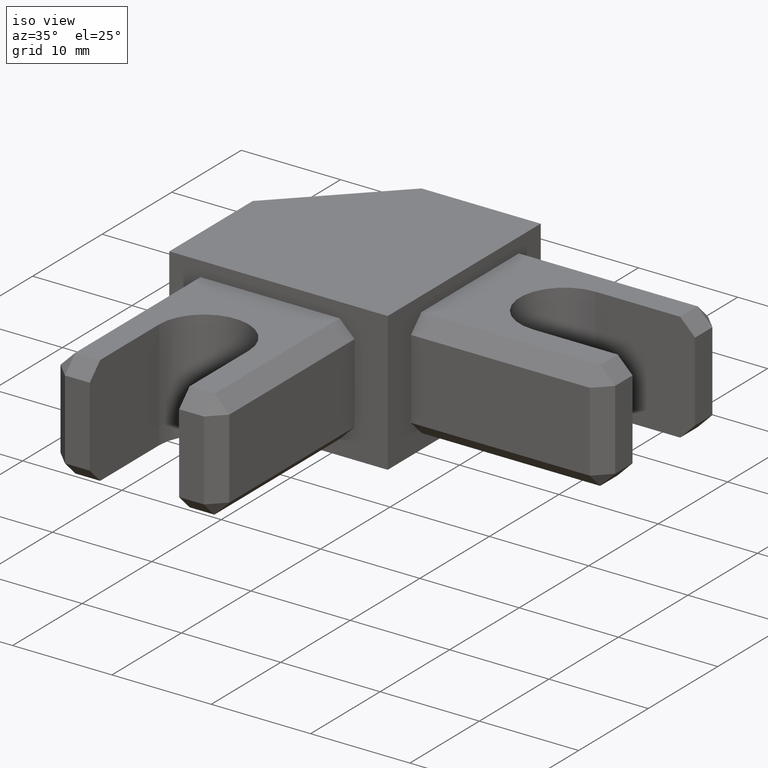
[diagram: clean part render]
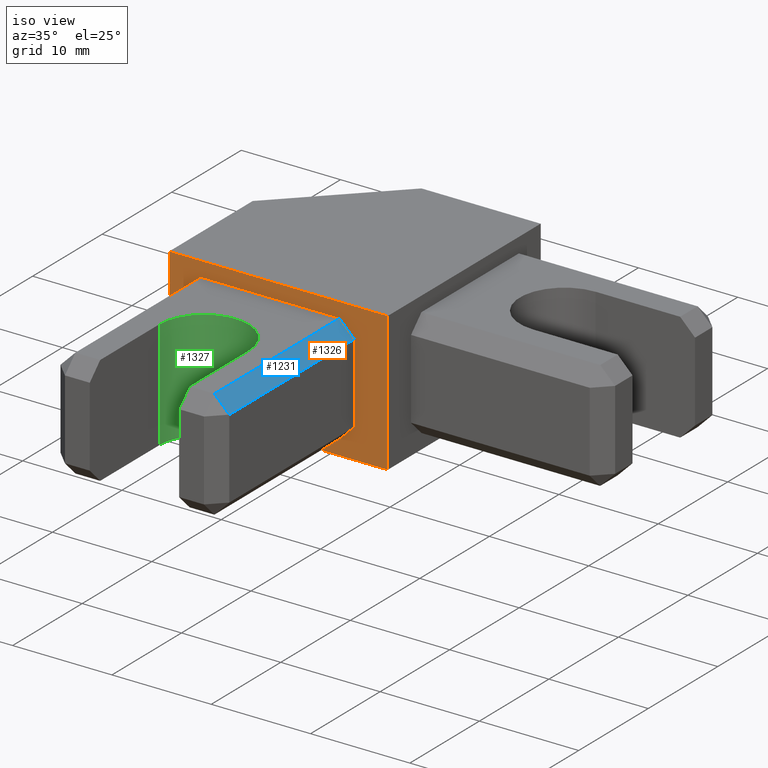
[diagram: same view with three faces highlighted in distinct colors, each labeled with its STEP entity id]
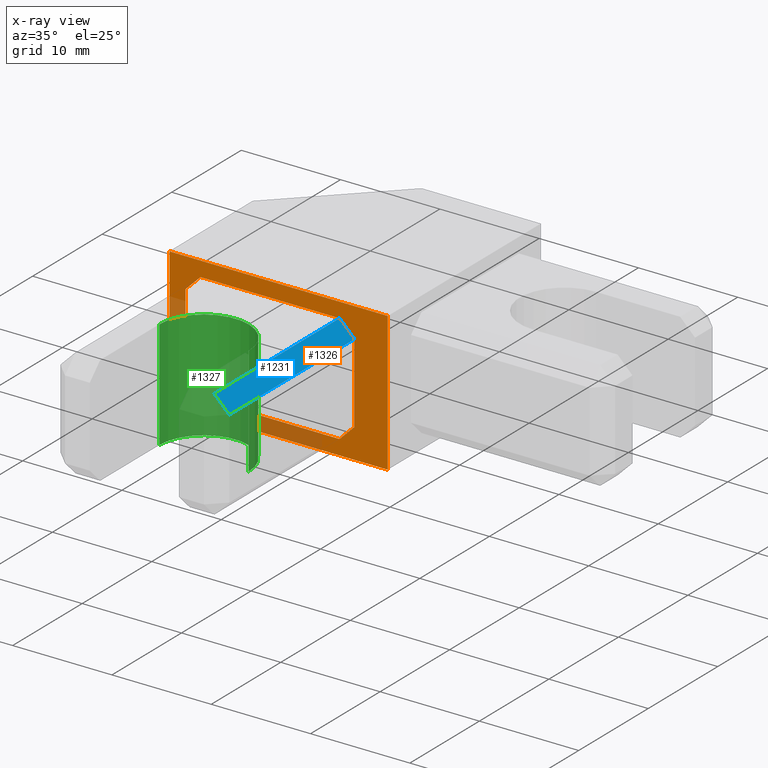
[diagram: x-ray of the same camera — body ghosted, the three highlighted faces saturated]
A machine part, iso view with three faces highlighted in distinct colors.
The next image is the same camera in x-ray (body ghosted, the three faces saturated) — at least one of them is partly hidden behind the body in this view.
Their STEP definitions:

[orange] entity #1326 — the highlighted planar face has unit normal (0, -1, 0).
#223 = FACE_OUTER_BOUND ( 'NONE', #948, .T. ) ;
#233 = FACE_BOUND ( 'NONE', #922, .T. ) ;
#238 = CARTESIAN_POINT ( 'NONE',  ( 484.7837601056899600, 394.2450700072844300, 27.55501611203465000 ) ) ;
#241 = DIRECTION ( 'NONE',  ( 2.234113567545890500E-015, -1.000000000000000000, 0.0000000000000000000 ) ) ;
#247 = DIRECTION ( 'NONE',  ( 1.000000000000000000, 2.234113567545890500E-015, 0.0000000000000000000 ) ) ;
#248 = PLANE ( 'NONE',  #1488 ) ;
#401 = CARTESIAN_POINT ( 'NONE',  ( 484.7937601056900100, 394.2450700072844800, 16.70501611203464900 ) ) ;
#431 = LINE ( 'NONE', #432, #1409 ) ;
#432 = CARTESIAN_POINT ( 'NONE',  ( 484.7937601056900100, 394.2450700072844800, 30.70501611203465200 ) ) ;
#434 = DIRECTION ( 'NONE',  ( 0.0000000000000000000, 0.0000000000000000000, -1.000000000000000000 ) ) ;
#440 = LINE ( 'NONE', #484, #1429 ) ;
#462 = LINE ( 'NONE', #467, #1442 ) ;
#464 = DIRECTION ( 'NONE',  ( -0.7071067811865455700, 0.0000000000000000000, -0.7071067811865495700 ) ) ;
#467 = CARTESIAN_POINT ( 'NONE',  ( 484.7937601056900100, 394.2450700072844800, 16.70501611203464900 ) ) ;
#470 = DIRECTION ( 'NONE',  ( 1.000000000000000000, 0.0000000000000000000, 0.0000000000000000000 ) ) ;
#471 = CARTESIAN_POINT ( 'NONE',  ( 482.4743233109049900, 394.2450700072844800, 18.20501611203464900 ) ) ;
#474 = DIRECTION ( 'NONE',  ( 0.0000000000000000000, 0.0000000000000000000, -1.000000000000000000 ) ) ;
#475 = LINE ( 'NONE', #476, #1449 ) ;
#476 = CARTESIAN_POINT ( 'NONE',  ( 499.5437601056900100, 394.2450700072844800, 15.80501611203470000 ) ) ;
#478 = LINE ( 'NONE', #471, #1456 ) ;
#484 = CARTESIAN_POINT ( 'NONE',  ( 506.7937601056900100, 394.2450700072844800, 30.70501611203465200 ) ) ;
#487 = CARTESIAN_POINT ( 'NONE',  ( 484.7937601056900100, 394.2450700072844800, 29.20501611203465200 ) ) ;
#488 = DIRECTION ( 'NONE',  ( 1.000000000000000000, 0.0000000000000000000, 7.255947251187369900E-017 ) ) ;
#490 = LINE ( 'NONE', #487, #1430 ) ;
#494 = DIRECTION ( 'NONE',  ( -1.000000000000000000, 0.0000000000000000000, -6.266940531214389000E-017 ) ) ;
#507 = LINE ( 'NONE', #515, #1421 ) ;
#515 = CARTESIAN_POINT ( 'NONE',  ( 486.4437601056899900, 394.2450700072844800, 23.55501611203467500 ) ) ;
#518 = CARTESIAN_POINT ( 'NONE',  ( 487.1937601056899900, 394.2450700072844800, 28.45501611203470200 ) ) ;
#519 = DIRECTION ( 'NONE',  ( 0.7071067811865460200, 0.0000000000000000000, -0.7071067811865489100 ) ) ;
#520 = LINE ( 'NONE', #530, #1448 ) ;
#521 = LINE ( 'NONE', #529, #1440 ) ;
#522 = DIRECTION ( 'NONE',  ( 0.7071067811865441300, 0.0000000000000000000, 0.7071067811865510100 ) ) ;
#523 = DIRECTION ( 'NONE',  ( -0.0000000000000000000, -0.0000000000000000000, 1.000000000000000000 ) ) ;
#524 = LINE ( 'NONE', #539, #1453 ) ;
#525 = DIRECTION ( 'NONE',  ( -0.7071067811865441300, 0.0000000000000000000, 0.7071067811865510100 ) ) ;
#529 = CARTESIAN_POINT ( 'NONE',  ( 492.5437601056900100, 394.2450700072844800, 38.60501611203469700 ) ) ;
#530 = CARTESIAN_POINT ( 'NONE',  ( 503.4437601056900500, 394.2450700072844800, 23.55501611203467500 ) ) ;
#535 = LINE ( 'NONE', #518, #1451 ) ;
#539 = CARTESIAN_POINT ( 'NONE',  ( 480.1937601056900500, 394.2450700072844800, 25.95501611203475200 ) ) ;
#540 = DIRECTION ( 'NONE',  ( -0.0000000000000000000, -0.0000000000000000000, 1.000000000000000000 ) ) ;
#546 = CARTESIAN_POINT ( 'NONE',  ( 503.4437601056900500, 394.2450700072844800, 30.70501611203465200 ) ) ;
#547 = LINE ( 'NONE', #546, #1443 ) ;
#568 = DIRECTION ( 'NONE',  ( 1.000000000000000000, 0.0000000000000000000, 0.0000000000000000000 ) ) ;
#596 = VERTEX_POINT ( 'NONE', #1174 ) ;
#603 = VERTEX_POINT ( 'NONE', #1182 ) ;
#604 = VERTEX_POINT ( 'NONE', #1197 ) ;
#605 = VERTEX_POINT ( 'NONE', #1201 ) ;
#606 = VERTEX_POINT ( 'NONE', #1175 ) ;
#607 = VERTEX_POINT ( 'NONE', #1185 ) ;
#608 = VERTEX_POINT ( 'NONE', #1167 ) ;
#611 = VERTEX_POINT ( 'NONE', #1189 ) ;
#621 = VERTEX_POINT ( 'NONE', #1149 ) ;
#623 = VERTEX_POINT ( 'NONE', #1152 ) ;
#633 = VERTEX_POINT ( 'NONE', #1209 ) ;
#637 = ORIENTED_EDGE ( 'NONE', *, *, #1253, .T. ) ;
#640 = ORIENTED_EDGE ( 'NONE', *, *, #1241, .T. ) ;
#641 = ORIENTED_EDGE ( 'NONE', *, *, #1255, .T. ) ;
#645 = ORIENTED_EDGE ( 'NONE', *, *, #1251, .T. ) ;
#649 = ORIENTED_EDGE ( 'NONE', *, *, #1258, .F. ) ;
#651 = ORIENTED_EDGE ( 'NONE', *, *, #1245, .T. ) ;
#652 = ORIENTED_EDGE ( 'NONE', *, *, #1235, .T. ) ;
#657 = ORIENTED_EDGE ( 'NONE', *, *, #1242, .T. ) ;
#688 = ORIENTED_EDGE ( 'NONE', *, *, #1243, .T. ) ;
#692 = ORIENTED_EDGE ( 'NONE', *, *, #1237, .F. ) ;
#693 = ORIENTED_EDGE ( 'NONE', *, *, #1254, .T. ) ;
#699 = ORIENTED_EDGE ( 'NONE', *, *, #1257, .F. ) ;
#922 = EDGE_LOOP ( 'NONE', ( #699, #688, #651, #641, #637, #693, #640, #645 ) ) ;
#948 = EDGE_LOOP ( 'NONE', ( #657, #692, #649, #652 ) ) ;
#978 = VERTEX_POINT ( 'NONE', #401 ) ;
#1149 = CARTESIAN_POINT ( 'NONE',  ( 487.9437601056899900, 394.2450700072844800, 29.20501611203465200 ) ) ;
#1152 = CARTESIAN_POINT ( 'NONE',  ( 487.9437601056899900, 394.2450700072844300, 18.20501611203467700 ) ) ;
#1167 = CARTESIAN_POINT ( 'NONE',  ( 486.4437601056899900, 394.2450700072844300, 19.70501611203464200 ) ) ;
#1174 = CARTESIAN_POINT ( 'NONE',  ( 503.4437601056900500, 394.2450700072844800, 19.70501611203469800 ) ) ;
#1175 = CARTESIAN_POINT ( 'NONE',  ( 501.9437601056899900, 394.2450700072844800, 18.20501611203464900 ) ) ;
#1182 = CARTESIAN_POINT ( 'NONE',  ( 486.4437601056899900, 394.2450700072844800, 27.70501611203465200 ) ) ;
#1185 = CARTESIAN_POINT ( 'NONE',  ( 506.7937601056900100, 394.2450700072844800, 16.70501611203464900 ) ) ;
#1189 = CARTESIAN_POINT ( 'NONE',  ( 503.4437601056900500, 394.2450700072844800, 27.70501611203465200 ) ) ;
#1197 = CARTESIAN_POINT ( 'NONE',  ( 484.7937601056900100, 394.2450700072844800, 30.70501611203465200 ) ) ;
#1201 = CARTESIAN_POINT ( 'NONE',  ( 501.9437601056899900, 394.2450700072844800, 29.20501611203465200 ) ) ;
#1209 = CARTESIAN_POINT ( 'NONE',  ( 506.7937601056900100, 394.2450700072844800, 30.70501611203465200 ) ) ;
#1235 = EDGE_CURVE ( 'NONE', #604, #978, #431, .T. ) ;
#1237 = EDGE_CURVE ( 'NONE', #633, #607, #440, .T. ) ;
#1241 = EDGE_CURVE ( 'NONE', #621, #605, #490, .T. ) ;
#1242 = EDGE_CURVE ( 'NONE', #978, #607, #462, .T. ) ;
#1243 = EDGE_CURVE ( 'NONE', #596, #606, #475, .T. ) ;
#1245 = EDGE_CURVE ( 'NONE', #606, #623, #478, .T. ) ;
#1251 = EDGE_CURVE ( 'NONE', #605, #611, #521, .T. ) ;
#1253 = EDGE_CURVE ( 'NONE', #608, #603, #507, .T. ) ;
#1254 = EDGE_CURVE ( 'NONE', #603, #621, #535, .T. ) ;
#1255 = EDGE_CURVE ( 'NONE', #623, #608, #524, .T. ) ;
#1257 = EDGE_CURVE ( 'NONE', #596, #611, #520, .T. ) ;
#1258 = EDGE_CURVE ( 'NONE', #604, #633, #547, .T. ) ;
#1326 = ADVANCED_FACE ( 'NONE', ( #223, #233 ), #248, .T. ) ;
#1409 = VECTOR ( 'NONE', #434, 1000.000000000000000 ) ;
#1421 = VECTOR ( 'NONE', #523, 1000.000000000000000 ) ;
#1429 = VECTOR ( 'NONE', #474, 1000.000000000000000 ) ;
#1430 = VECTOR ( 'NONE', #488, 1000.000000000000000 ) ;
#1440 = VECTOR ( 'NONE', #519, 1000.000000000000100 ) ;
#1442 = VECTOR ( 'NONE', #470, 1000.000000000000000 ) ;
#1443 = VECTOR ( 'NONE', #568, 1000.000000000000000 ) ;
#1448 = VECTOR ( 'NONE', #540, 1000.000000000000000 ) ;
#1449 = VECTOR ( 'NONE', #464, 1000.000000000000100 ) ;
#1451 = VECTOR ( 'NONE', #522, 999.9999999999998900 ) ;
#1453 = VECTOR ( 'NONE', #525, 999.9999999999998900 ) ;
#1456 = VECTOR ( 'NONE', #494, 1000.000000000000000 ) ;
#1488 = AXIS2_PLACEMENT_3D ( 'NONE', #238, #241, #247 ) ;

[blue] entity #1231 — the highlighted planar face has unit normal (0.7071, 0, 0.7071).
#331 = EDGE_CURVE ( 'NONE', #942, #605, #1086, .T. ) ;
#341 = EDGE_CURVE ( 'NONE', #611, #970, #1065, .T. ) ;
#354 = EDGE_CURVE ( 'NONE', #970, #942, #1121, .T. ) ;
#403 = CARTESIAN_POINT ( 'NONE',  ( 501.9437601056899900, 376.2450700072845400, 29.20501611203465200 ) ) ;
#414 = CARTESIAN_POINT ( 'NONE',  ( 503.4437601056900500, 376.2450700072845400, 27.70501611203465200 ) ) ;
#428 = FACE_OUTER_BOUND ( 'NONE', #899, .T. ) ;
#433 = CARTESIAN_POINT ( 'NONE',  ( 501.9437601056899900, 374.7450700072845400, 29.20501611203465200 ) ) ;
#450 = PLANE ( 'NONE',  #1413 ) ;
#451 = DIRECTION ( 'NONE',  ( 0.7071067811865490200, 0.0000000000000000000, 0.7071067811865461300 ) ) ;
#452 = DIRECTION ( 'NONE',  ( 0.7071067811865460200, 0.0000000000000000000, -0.7071067811865489100 ) ) ;
#519 = DIRECTION ( 'NONE',  ( 0.7071067811865460200, 0.0000000000000000000, -0.7071067811865489100 ) ) ;
#521 = LINE ( 'NONE', #529, #1440 ) ;
#529 = CARTESIAN_POINT ( 'NONE',  ( 492.5437601056900100, 394.2450700072844800, 38.60501611203469700 ) ) ;
#605 = VERTEX_POINT ( 'NONE', #1201 ) ;
#611 = VERTEX_POINT ( 'NONE', #1189 ) ;
#833 = ORIENTED_EDGE ( 'NONE', *, *, #331, .F. ) ;
#835 = ORIENTED_EDGE ( 'NONE', *, *, #354, .F. ) ;
#838 = ORIENTED_EDGE ( 'NONE', *, *, #341, .F. ) ;
#853 = ORIENTED_EDGE ( 'NONE', *, *, #1251, .F. ) ;
#899 = EDGE_LOOP ( 'NONE', ( #853, #833, #835, #838 ) ) ;
#942 = VERTEX_POINT ( 'NONE', #403 ) ;
#970 = VERTEX_POINT ( 'NONE', #414 ) ;
#1065 = LINE ( 'NONE', #1072, #1384 ) ;
#1072 = CARTESIAN_POINT ( 'NONE',  ( 503.4437601056900500, 374.7450700072845400, 27.70501611203465200 ) ) ;
#1073 = DIRECTION ( 'NONE',  ( 0.0000000000000000000, -1.000000000000000000, 0.0000000000000000000 ) ) ;
#1086 = LINE ( 'NONE', #1100, #1378 ) ;
#1100 = CARTESIAN_POINT ( 'NONE',  ( 501.9437601056899900, 394.2450700072844800, 29.20501611203465200 ) ) ;
#1102 = DIRECTION ( 'NONE',  ( 0.0000000000000000000, 1.000000000000000000, 0.0000000000000000000 ) ) ;
#1121 = LINE ( 'NONE', #1135, #1398 ) ;
#1135 = CARTESIAN_POINT ( 'NONE',  ( 501.9437601056899900, 376.2450700072845400, 29.20501611203465200 ) ) ;
#1143 = DIRECTION ( 'NONE',  ( -0.7071067811865460200, -3.585236545425225700E-015, 0.7071067811865489100 ) ) ;
#1189 = CARTESIAN_POINT ( 'NONE',  ( 503.4437601056900500, 394.2450700072844800, 27.70501611203465200 ) ) ;
#1201 = CARTESIAN_POINT ( 'NONE',  ( 501.9437601056899900, 394.2450700072844800, 29.20501611203465200 ) ) ;
#1231 = ADVANCED_FACE ( 'NONE', ( #428 ), #450, .T. ) ;
#1251 = EDGE_CURVE ( 'NONE', #605, #611, #521, .T. ) ;
#1378 = VECTOR ( 'NONE', #1102, 1000.000000000000000 ) ;
#1384 = VECTOR ( 'NONE', #1073, 1000.000000000000000 ) ;
#1398 = VECTOR ( 'NONE', #1143, 1000.000000000000100 ) ;
#1413 = AXIS2_PLACEMENT_3D ( 'NONE', #433, #451, #452 ) ;
#1440 = VECTOR ( 'NONE', #519, 1000.000000000000100 ) ;

[green] entity #1327 — the highlighted cylindrical surface (partial cylindrical patch) has radius 4.5 mm, axis along (-0, -0, 1).
#211 = CYLINDRICAL_SURFACE ( 'NONE', #1484, 4.500000000000003600 ) ;
#219 = DIRECTION ( 'NONE',  ( -0.0000000000000000000, -0.0000000000000000000, 1.000000000000000000 ) ) ;
#237 = DIRECTION ( 'NONE',  ( 1.000000000000000000, 0.0000000000000000000, 0.0000000000000000000 ) ) ;
#246 = CARTESIAN_POINT ( 'NONE',  ( 494.9437601056900500, 384.7450700072845400, 23.55501611203467500 ) ) ;
#251 = FACE_OUTER_BOUND ( 'NONE', #924, .T. ) ;
#350 = EDGE_CURVE ( 'NONE', #953, #941, #1359, .T. ) ;
#357 = EDGE_CURVE ( 'NONE', #953, #954, #1106, .T. ) ;
#365 = EDGE_CURVE ( 'NONE', #895, #954, #1402, .T. ) ;
#367 = EDGE_CURVE ( 'NONE', #941, #895, #1165, .T. ) ;
#387 = CARTESIAN_POINT ( 'NONE',  ( 490.4437601056900500, 384.7450700072845400, 18.20501611203464900 ) ) ;
#389 = CARTESIAN_POINT ( 'NONE',  ( 490.4437601056900500, 384.7450700072845400, 29.20501611203465200 ) ) ;
#394 = CARTESIAN_POINT ( 'NONE',  ( 499.4437601056900500, 384.7450700072845400, 29.20501611203465200 ) ) ;
#405 = CARTESIAN_POINT ( 'NONE',  ( 499.4437601056900500, 384.7450700072845400, 18.20501611203469800 ) ) ;
#800 = ORIENTED_EDGE ( 'NONE', *, *, #365, .F. ) ;
#806 = ORIENTED_EDGE ( 'NONE', *, *, #350, .F. ) ;
#821 = ORIENTED_EDGE ( 'NONE', *, *, #357, .T. ) ;
#823 = ORIENTED_EDGE ( 'NONE', *, *, #367, .F. ) ;
#895 = VERTEX_POINT ( 'NONE', #389 ) ;
#924 = EDGE_LOOP ( 'NONE', ( #821, #800, #823, #806 ) ) ;
#941 = VERTEX_POINT ( 'NONE', #387 ) ;
#953 = VERTEX_POINT ( 'NONE', #405 ) ;
#954 = VERTEX_POINT ( 'NONE', #394 ) ;
#1103 = CARTESIAN_POINT ( 'NONE',  ( 494.9437601056900500, 384.7450700072845400, 18.20501611203464900 ) ) ;
#1106 = LINE ( 'NONE', #1145, #1395 ) ;
#1108 = DIRECTION ( 'NONE',  ( -6.266940531214389000E-017, -0.0000000000000000000, 1.000000000000000000 ) ) ;
#1112 = DIRECTION ( 'NONE',  ( -1.000000000000000000, 0.0000000000000000000, 0.0000000000000000000 ) ) ;
#1145 = CARTESIAN_POINT ( 'NONE',  ( 499.4437601056900500, 384.7450700072845400, 23.55501611203467500 ) ) ;
#1147 = DIRECTION ( 'NONE',  ( -0.0000000000000000000, -0.0000000000000000000, 1.000000000000000000 ) ) ;
#1154 = DIRECTION ( 'NONE',  ( 7.255947251187369900E-017, -0.0000000000000000000, -1.000000000000000000 ) ) ;
#1155 = CARTESIAN_POINT ( 'NONE',  ( 494.9437601056900500, 384.7450700072845400, 29.20501611203465200 ) ) ;
#1159 = CARTESIAN_POINT ( 'NONE',  ( 490.4437601056900500, 384.7450700072845400, 23.55501611203467500 ) ) ;
#1165 = LINE ( 'NONE', #1159, #1392 ) ;
#1166 = DIRECTION ( 'NONE',  ( -0.0000000000000000000, -0.0000000000000000000, 1.000000000000000000 ) ) ;
#1171 = DIRECTION ( 'NONE',  ( 1.000000000000000000, 0.0000000000000000000, 0.0000000000000000000 ) ) ;
#1327 = ADVANCED_FACE ( 'NONE', ( #251 ), #211, .F. ) ;
#1359 = CIRCLE ( 'NONE', #1365, 4.500000000000003600 ) ;
#1365 = AXIS2_PLACEMENT_3D ( 'NONE', #1103, #1108, #1112 ) ;
#1392 = VECTOR ( 'NONE', #1166, 1000.000000000000000 ) ;
#1394 = AXIS2_PLACEMENT_3D ( 'NONE', #1155, #1154, #1171 ) ;
#1395 = VECTOR ( 'NONE', #1147, 1000.000000000000000 ) ;
#1402 = CIRCLE ( 'NONE', #1394, 4.500000000000003600 ) ;
#1484 = AXIS2_PLACEMENT_3D ( 'NONE', #246, #219, #237 ) ;